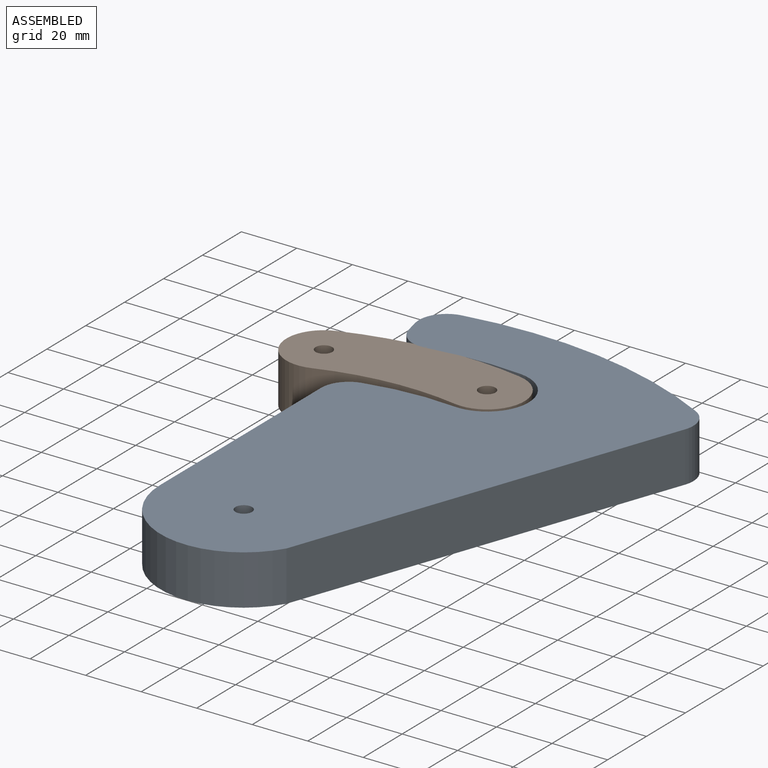
[diagram: assembled view]
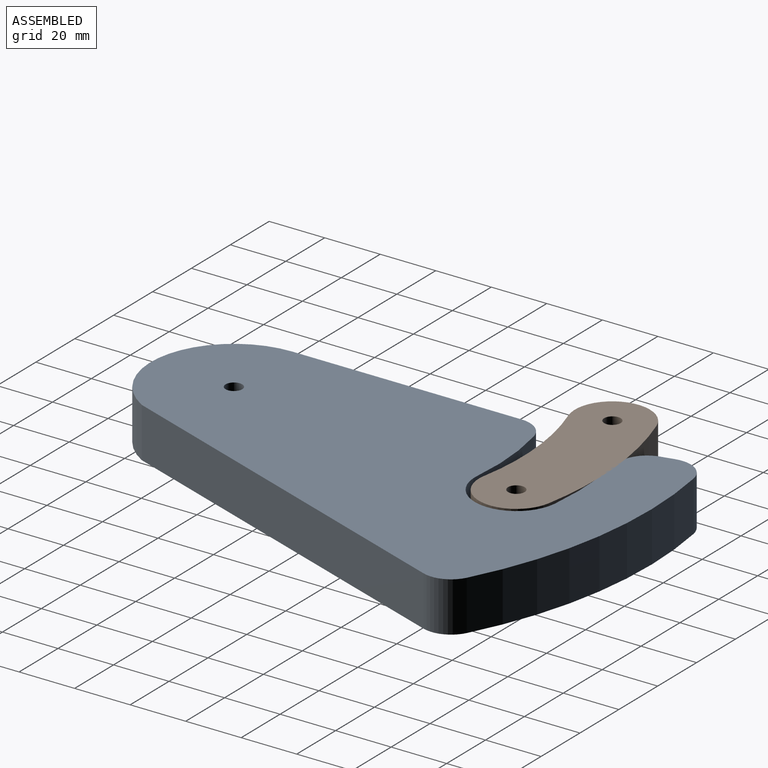
[diagram: assembled view, second angle]
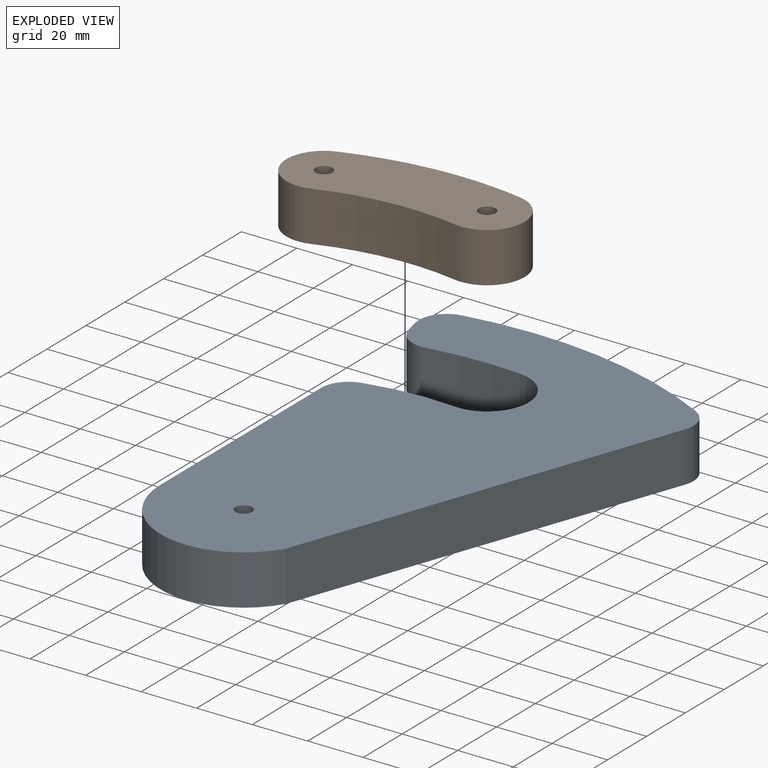
[diagram: exploded view]
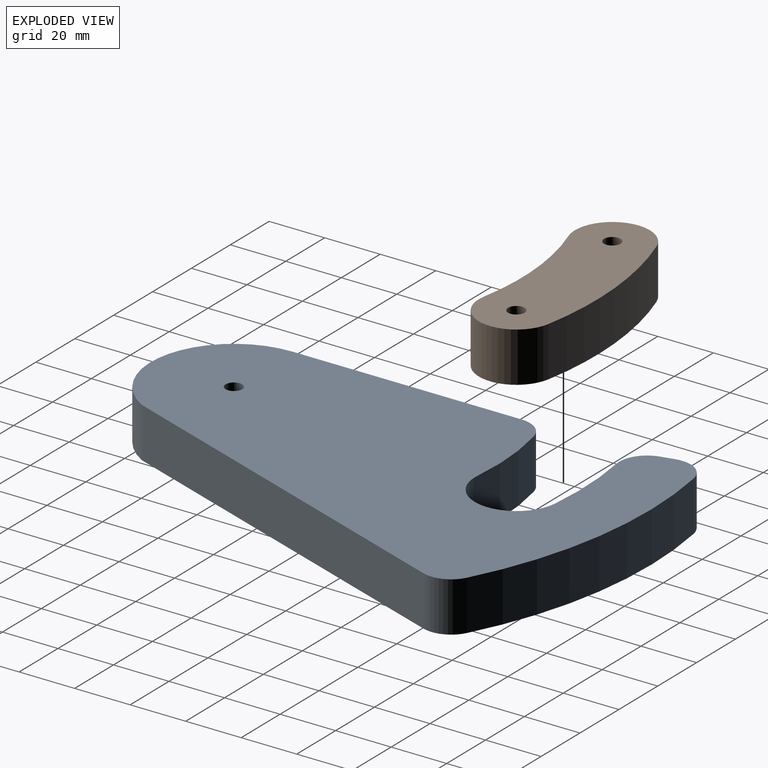
[diagram: exploded view, second angle]
ASSEMBLY  parts=2 mates=2
PART A: 15 faces, bbox 108.7x180x18 mm
  f0: cylinder r=125mm len=33.29mm, axis (0,0,-1), area 601.3mm2, adj f1,f11,f13,f14
  f1: cylinder r=15mm len=29.92mm, axis (0,0,-1), area 848.2mm2, adj f0,f2,f13,f14
  f2: cylinder r=95mm len=31.87mm, axis (0,0,-1), area 577.8mm2, adj f1,f3,f13,f14
  f3: cylinder r=10mm len=18mm, axis (0,0,-1), area 240mm2, adj f2,f4,f13,f14
  f4: plane 82.61x18mm, normal (-1,0,0), area 1487mm2, adj f3,f5,f13,f14
  f5: cylinder r=30mm len=55.95mm, axis (0,0,-1), area 1412.7mm2, adj f4,f6,f13,f14
  f6: plane 135.57x48.65mm, normal (0.94,-0.34,0), area 2592.6mm2, adj f5,f7,f13,f14
  f7: cylinder r=10mm len=18mm, axis (0,0,-1), area 257.6mm2, adj f6,f8,f13,f14
  f8: cylinder r=150mm len=95.07mm, axis (0,0,-1), area 1763.9mm2, adj f7,f9,f13,f14
  f9: cylinder r=10mm len=18mm, axis (0,0,-1), area 292.6mm2, adj f8,f10,f13,f14
  f10: plane 18x4.88mm, normal (-0.98,-0.22,0), area 90.1mm2, adj f9,f11,f13,f14
  f11: cylinder r=10mm len=18mm, axis (0,0,-1), area 272.5mm2, adj f0,f10,f13,f14
  f12: cylinder r=3mm len=18mm, axis (0,0,-1), area 339.3mm2, adj f13,f14
  f13: plane 180x108.73mm, normal (0,0,1), area 12378.8mm2, adj f0,f1,f2,f3,f4,f5,f6,f7
  f14: plane 180x108.73mm, normal (0,0,-1), area 12378.8mm2, adj f0,f1,f2,f3,f4,f5,f6,f7
PART B: 8 faces, bbox 82.7x33.2x18 mm
  f0: cylinder r=122mm len=62.63mm, axis (0,0,-1), area 1143.7mm2, adj f1,f5,f6,f7
  f1: cylinder r=13.5mm len=26.23mm, axis (0,0,-1), area 763.4mm2, adj f0,f2,f6,f7
  f2: cylinder r=95mm len=48.77mm, axis (0,0,-1), area 890.6mm2, adj f1,f5,f6,f7
  f3: cylinder r=3mm len=18mm, axis (0,0,-1), area 339.3mm2, adj f6,f7
  f4: cylinder r=3mm len=18mm, axis (0,0,-1), area 339.3mm2, adj f6,f7
  f5: cylinder r=13.5mm len=26.78mm, axis (0,0,-1), area 763.4mm2, adj f0,f2,f6,f7
  f6: plane 82.7x33.19mm, normal (0,0,1), area 2041.7mm2, adj f0,f1,f2,f3,f4,f5
  f7: plane 82.7x33.19mm, normal (0,0,-1), area 2041.7mm2, adj f0,f1,f2,f3,f4,f5
PLACE A t=(38.11,-75.96,33.75)mm
PLACE B t=(29.55,-73.23,33.75)mm
MATE planar B.f3 <-> A.f1  axis (0,0,1) through (49.13,33.49,51.75)mm
MATE planar A.f1 <-> B.f3  axis (0,0,-1) through (49.13,33.49,51.75)mm
